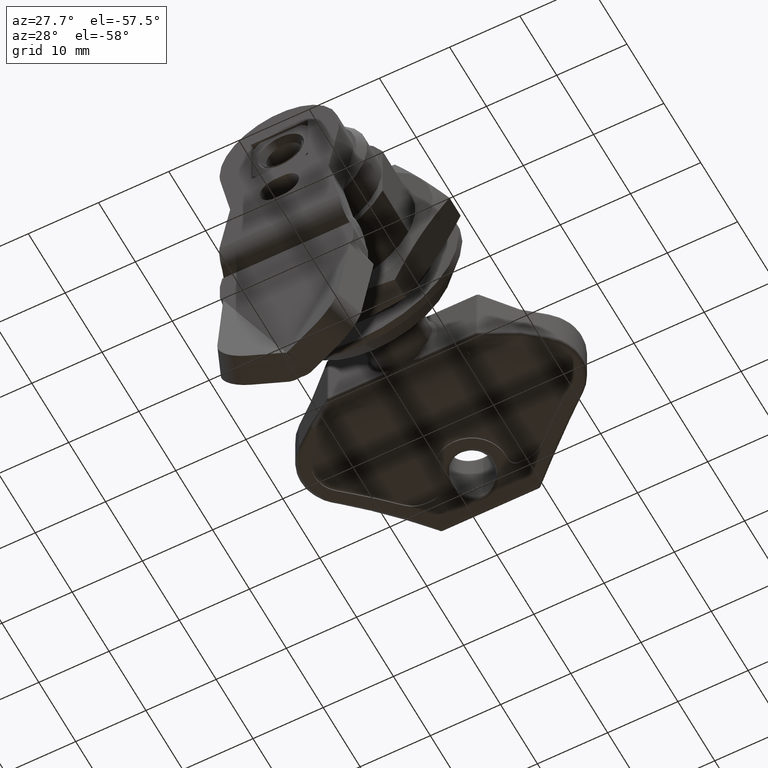
[diagram: clean part render]
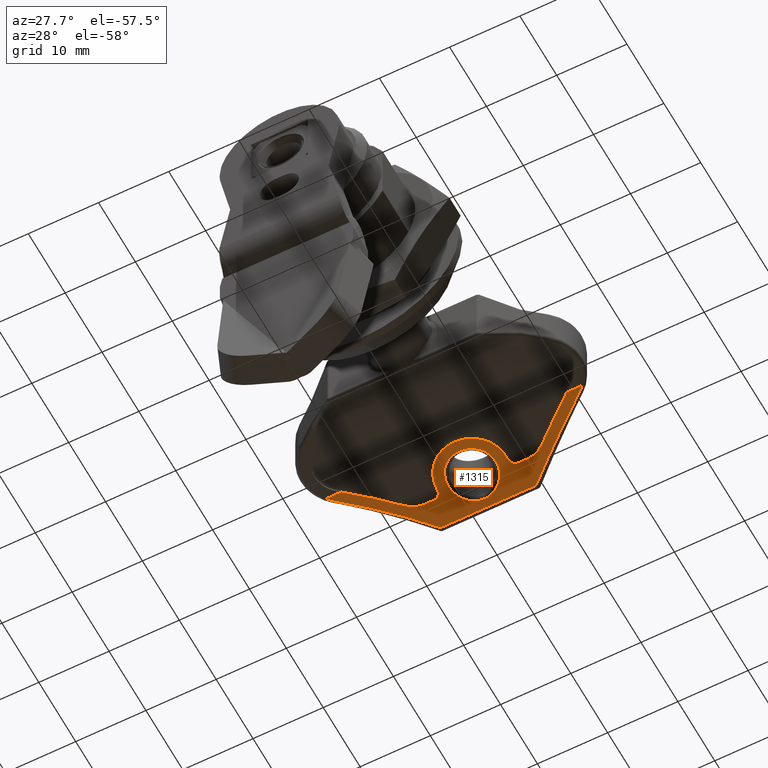
[diagram: same view with one face highlighted and labeled with its STEP entity id]
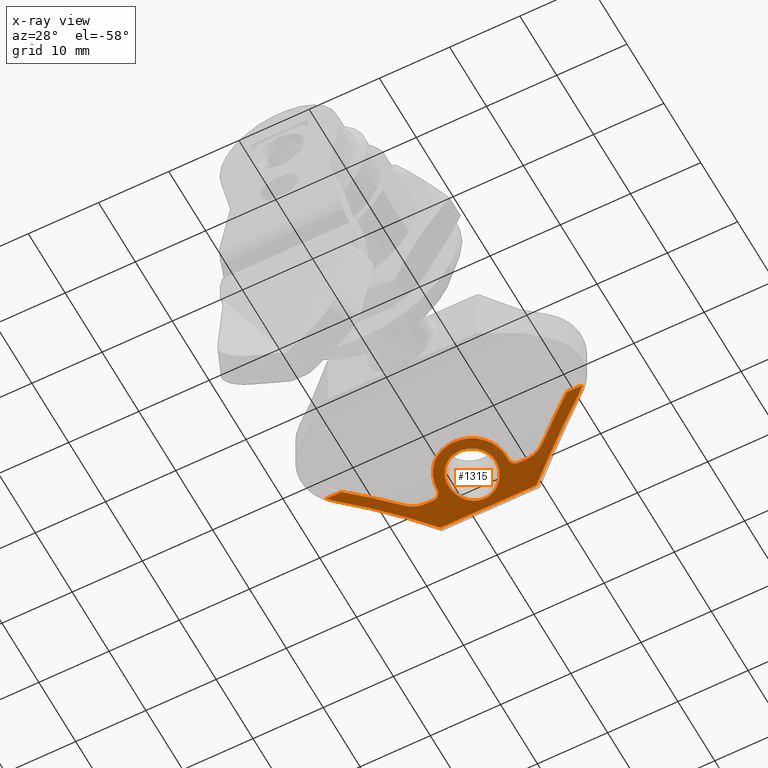
[diagram: x-ray of the same camera — body ghosted, the highlighted face saturated]
A machine part, auxiliary view. The second image highlights one B-rep face of the part: STEP entity #1315.
The next image is the same camera in x-ray: the body ghosted, the highlighted face saturated — about 0% of this face is hidden behind the body in this view.
In plain terms, the highlighted cylindrical surface (partial cylindrical patch) has radius 20.3895 mm, axis along (-1, 0, 0).
Its self-contained STEP definition (entity closure, byte-faithful):
#18 = CARTESIAN_POINT ( 'NONE',  ( 14.88785095321629193, 51.01937870650804285, 5.210504290748258605 ) ) ;
#25 = CARTESIAN_POINT ( 'NONE',  ( 13.54383272834816943, 52.18032233803637610, 4.957320331130537383 ) ) ;
#30 = CARTESIAN_POINT ( 'NONE',  ( 10.79421112067232080, 55.51895492630796269, 3.820107334346352967 ) ) ;
#111 = CARTESIAN_POINT ( 'NONE',  ( 7.555674353660953635, 49.77772899556182296, 5.398894104357743196 ) ) ;
#119 = CARTESIAN_POINT ( 'NONE',  ( 6.819077333304382371, 53.50826473908239933, 4.581859514832879121 ) ) ;
#152 = VERTEX_POINT ( 'NONE', #14259 ) ;
#200 = CARTESIAN_POINT ( 'NONE',  ( 15.01242744097246984, 51.65380340385339508, 5.082368643503118122 ) ) ;
#207 = CARTESIAN_POINT ( 'NONE',  ( 7.791146958207747275, 49.56440647782793718, 5.423956761933238724 ) ) ;
#213 = CARTESIAN_POINT ( 'NONE',  ( 6.705674894175968959, 53.20872758418365578, 4.675169841569734253 ) ) ;
#326 = EDGE_CURVE ( 'NONE', #18755, #3208, #16031, .T. ) ;
#400 = CARTESIAN_POINT ( 'NONE',  ( 23.98606253962771362, 49.02039703702723017, 5.550000000000019362 ) ) ;
#456 = CARTESIAN_POINT ( 'NONE',  ( -3.590225598182513078, 51.11934698418467349, 5.213718082265362597 ) ) ;
#491 = CARTESIAN_POINT ( 'NONE',  ( 4.043832724294067482, 53.30000000000023874, 4.647206766282116597 ) ) ;
#540 = CARTESIAN_POINT ( 'NONE',  ( 19.87350431050496979, 52.39296948010485266, 4.903686010593611755 ) ) ;
#556 = CARTESIAN_POINT ( 'NONE',  ( 25.51381831255090304, 49.64979554227241465, 5.478515171168681697 ) ) ;
#575 = CARTESIAN_POINT ( 'NONE',  ( 0.9655238923792776040, 52.90928467542777724, 4.763920496147288297 ) ) ;
#589 = VERTEX_POINT ( 'NONE', #2054 ) ;
#596 = CARTESIAN_POINT ( 'NONE',  ( -8.198807962825929607, 47.29999999999967741, 5.550000000000129496 ) ) ;
#951 = EDGE_CURVE ( 'NONE', #2812, #15016, #2051, .T. ) ;
#999 = CARTESIAN_POINT ( 'NONE',  ( 15.04383272429413587, 52.30000000000034532, 4.927435300544324548 ) ) ;
#1058 = CARTESIAN_POINT ( 'NONE',  ( 16.86503334508689989, 56.57261321819917299, 3.319531618649753657 ) ) ;
#1081 = CARTESIAN_POINT ( 'NONE',  ( 10.28925303713001682, 48.77210977782772972, 5.496795955480338058 ) ) ;
#1108 = CARTESIAN_POINT ( 'NONE',  ( 5.018104145273388994, 52.55953389391942210, 4.860354968943031650 ) ) ;
#1146 = CARTESIAN_POINT ( 'NONE',  ( 5.043832724294125214, 52.30000000000023874, 4.927435300544324548 ) ) ;
#1149 = EDGE_CURVE ( 'NONE', #589, #10465, #16810, .T. ) ;
#1313 = VERTEX_POINT ( 'NONE', #16374 ) ;
#1315 = ADVANCED_FACE ( 'NONE', ( #3127, #9016 ), #14936, .F. ) ;
#1338 = LINE ( 'NONE', #2986, #11663 ) ;
#1378 = CARTESIAN_POINT ( 'NONE',  ( 9.652581992786052112, 48.77789026817072227, 5.496419262887671131 ) ) ;
#1384 = CARTESIAN_POINT ( 'NONE',  ( 8.374655603643423873, 55.21425960193634097, 3.952124372035101807 ) ) ;
#1394 = CARTESIAN_POINT ( 'NONE',  ( 6.051175379607917293, 49.27246292301420283, 5.456232565954421965 ) ) ;
#1395 = CARTESIAN_POINT ( 'NONE',  ( 12.64825074949725092, 54.47429363554049786, 4.246918594024753801 ) ) ;
#1466 = ORIENTED_EDGE ( 'NONE', *, *, #3072, .F. ) ;
#1470 = CARTESIAN_POINT ( 'NONE',  ( 12.27185521397945145, 47.81168412334348972, 5.543974457935275879 ) ) ;
#1475 = CARTESIAN_POINT ( 'NONE',  ( 10.13861282768238858, 48.76500346409252984, 5.497303665799290862 ) ) ;
#1514 = VERTEX_POINT ( 'NONE', #18561 ) ;
#1566 = B_SPLINE_CURVE_WITH_KNOTS ( 'NONE', 3,
 ( #15798, #8726, #17437, #10093, #2545, #2937, #11751, #13105, #7166, #1394, #18690, #8428, #14756, #17341, #14364, #18875, #15897, #13011, #17545, #4387, #7272, #4190 ),
 .UNSPECIFIED., .F., .F.,
 ( 4, 2, 2, 2, 2, 2, 2, 2, 2, 2, 4 ),
 ( 1.077240930865403988E-16, 0.0009834004425559878925, 0.001475100663833927737, 0.001966800885111867798, 0.002950201327667747054, 0.003933601770223626309, 0.004917002212779505999, 0.005900402655335384820, 0.006392102876613326400, 0.006883803097891267979, 0.007867203540447157209 ),
 .UNSPECIFIED. ) ;
#1568 = CARTESIAN_POINT ( 'NONE',  ( 7.208845486341361131, 50.12147164299538105, 5.356709029973823810 ) ) ;
#1573 = CARTESIAN_POINT ( 'NONE',  ( 6.543859272612793099, 52.36747925288622696, 4.911171063809310233 ) ) ;
#1609 = CARTESIAN_POINT ( 'NONE',  ( 17.79881027697454954, 53.27985272524402660, 4.653442152882666605 ) ) ;
#1611 = CARTESIAN_POINT ( 'NONE',  ( -7.966598191023308573, 47.56298525015782275, 5.548827532856861033 ) ) ;
#1633 = EDGE_CURVE ( 'NONE', #10980, #16648, #1644, .T. ) ;
#1644 = LINE ( 'NONE', #11727, #7373 ) ;
#1656 = CARTESIAN_POINT ( 'NONE',  ( 6.543832715343453010, 52.18032244516601281, 4.957320157025003837 ) ) ;
#1663 = CARTESIAN_POINT ( 'NONE',  ( 6.651466892009020526, 53.02965789036620237, 4.728791810256310235 ) ) ;
#1675 = CARTESIAN_POINT ( 'NONE',  ( 30.04383272429400975, 47.30000000000011795, -14.83951680621002822 ) ) ;
#1685 = DIRECTION ( 'NONE',  ( -1.000000000000000000, 1.627250025346605968E-17, 4.177214130152150694E-15 ) ) ;
#1754 = CARTESIAN_POINT ( 'NONE',  ( 10.46903213903030405, 55.57811296755877351, 3.793983296833238761 ) ) ;
#1755 = CARTESIAN_POINT ( 'NONE',  ( 21.90487944431691147, 50.72710618622311074, 5.333413192778380107 ) ) ;
#1848 = ORIENTED_EDGE ( 'NONE', *, *, #9782, .F. ) ;
#1908 = CARTESIAN_POINT ( 'NONE',  ( -1.404686822636165511, 52.86873548362863318, 4.804859526433972405 ) ) ;
#1919 = CARTESIAN_POINT ( 'NONE',  ( 15.04383272429415008, 52.43043431261481402, 4.894442274631615852 ) ) ;
#1987 = CARTESIAN_POINT ( 'NONE',  ( 6.543832715343453010, 52.18032244516601281, 4.957320157025003837 ) ) ;
#2051 = B_SPLINE_CURVE_WITH_KNOTS ( 'NONE', 3,
 ( #15001, #10456, #6177, #16355, #9185, #1470, #13454, #5899, #13365, #12102, #15097, #14913, #13279, #16531, #18, #200, #11818, #6649 ),
 .UNSPECIFIED., .F., .F.,
 ( 4, 2, 2, 2, 2, 2, 2, 2, 4 ),
 ( 0.007867203540447157209, 0.008849610468263295268, 0.009832017396079435062, 0.01081442432389557312, 0.01179683125171171118, 0.01277923817952785097, 0.01376164510734398903, 0.01474405203516012883, 0.01572645896297626689 ),
 .UNSPECIFIED. ) ;
#2054 = CARTESIAN_POINT ( 'NONE',  ( 0.2141611380838421286, 52.39296948010452581, 4.903686010593805378 ) ) ;
#2099 = CARTESIAN_POINT ( 'NONE',  ( 18.38483465241563408, 55.35610638245619697, 3.940714496842108616 ) ) ;
#2118 = EDGE_CURVE ( 'NONE', #1514, #7368, #13331, .T. ) ;
#2200 =( BOUNDED_CURVE ( )  B_SPLINE_CURVE ( 3, ( #17190, #18437, #6821, #3737, #8369, #2291 ),
 .UNSPECIFIED., .F., .T. ) 
 B_SPLINE_CURVE_WITH_KNOTS ( ( 4, 1, 1, 4 ),
 ( 0.0000000000000000000, 0.3324685133038000062, 0.6658412342494999248, 1.000000000000000000 ),
 .UNSPECIFIED. ) 
 CURVE ( )  GEOMETRIC_REPRESENTATION_ITEM ( )  RATIONAL_B_SPLINE_CURVE ( ( 1.178422062299055106, 1.178422062299055106, 1.178422062299055106, 1.178422062299055106, 1.178422062299055106, 1.178422062299054884 ) ) 
 REPRESENTATION_ITEM ( '' )  );
#2238 = EDGE_CURVE ( 'NONE', #11887, #17584, #3149, .T. ) ;
#2291 = CARTESIAN_POINT ( 'NONE',  ( 27.53144031122565139, 48.03481415293126133, 5.536754779912023139 ) ) ;
#2524 = VECTOR ( 'NONE', #9157, 1000.000000000000000 ) ;
#2531 = CARTESIAN_POINT ( 'NONE',  ( 12.55591446676407585, 49.80153591685380832, 5.395966139384481330 ) ) ;
#2545 = CARTESIAN_POINT ( 'NONE',  ( 5.205553289944472972, 51.02815609132847641, 5.206889105605129409 ) ) ;
#2546 = CARTESIAN_POINT ( 'NONE',  ( 11.69970157928345422, 55.19833104993283257, 3.958489952346768259 ) ) ;
#2629 = CARTESIAN_POINT ( 'NONE',  ( 12.68192576732093180, 49.93397503208184673, 5.379234149889191130 ) ) ;
#2735 = CARTESIAN_POINT ( 'NONE',  ( 10.08882246110063363, 48.76408876122007285, 5.497367555542250983 ) ) ;
#2812 = VERTEX_POINT ( 'NONE', #8936 ) ;
#2825 = CARTESIAN_POINT ( 'NONE',  ( 13.46668383997299756, 51.34288699489025021, 5.149566343214297959 ) ) ;
#2830 = CARTESIAN_POINT ( 'NONE',  ( 6.759276115792971495, 53.36070230727924013, 4.628437718058776795 ) ) ;
#2848 = EDGE_CURVE ( 'NONE', #7368, #7713, #10573, .T. ) ;
#2919 = CARTESIAN_POINT ( 'NONE',  ( 8.716894428786954307, 49.01912463627529348, 5.477399538874528240 ) ) ;
#2924 = CARTESIAN_POINT ( 'NONE',  ( 9.944239870812447535, 55.59552785915636264, 3.786183573923904699 ) ) ;
#2937 = CARTESIAN_POINT ( 'NONE',  ( 5.298596017381288270, 50.71593453157944253, 5.262446508315514748 ) ) ;
#2986 = CARTESIAN_POINT ( 'NONE',  ( 30.04383272429408791, 53.30000000000023874, 4.647206766282064194 ) ) ;
#3025 = CARTESIAN_POINT ( 'NONE',  ( 7.590480773614969756, 54.61709304469014370, 4.191853171315030657 ) ) ;
#3066 =( BOUNDED_CURVE ( )  B_SPLINE_CURVE ( 3, ( #18185, #1755, #400, #4841 ),
 .UNSPECIFIED., .F., .T. ) 
 B_SPLINE_CURVE_WITH_KNOTS ( ( 4, 4 ),
 ( 1.318339431994555611, 1.570796326794898334 ),
 .UNSPECIFIED. ) 
 CURVE ( )  GEOMETRIC_REPRESENTATION_ITEM ( )  RATIONAL_B_SPLINE_CURVE ( ( 1.000000000000000000, 0.9946958415076843085, 0.9946958415076843085, 1.000000000000000000 ) ) 
 REPRESENTATION_ITEM ( '' )  );
#3072 = EDGE_CURVE ( 'NONE', #3208, #18755, #12158, .T. ) ;
#3127 = FACE_BOUND ( 'NONE', #18188, .T. ) ;
#3149 = B_SPLINE_CURVE_WITH_KNOTS ( 'NONE', 3,
 ( #18911, #8960, #1609, #13421, #7405, #11878, #14877, #8566 ),
 .UNSPECIFIED., .F., .F.,
 ( 4, 2, 2, 4 ),
 ( 0.0000000000000000000, 0.0006878987070700087096, 0.001375797414140017419, 0.002751594828280025731 ),
 .UNSPECIFIED. ) ;
#3201 = CARTESIAN_POINT ( 'NONE',  ( 7.570999716663366463, 49.76268335464535397, 5.400731984297648225 ) ) ;
#3208 = VERTEX_POINT ( 'NONE', #10335 ) ;
#3210 = CARTESIAN_POINT ( 'NONE',  ( 7.468513230785140067, 54.49567590691520280, 4.238166560274475358 ) ) ;
#3284 = VERTEX_POINT ( 'NONE', #4805 ) ;
#3363 = CARTESIAN_POINT ( 'NONE',  ( -7.443775370176065387, 48.03481477255188992, 5.536754757570873764 ) ) ;
#3366 = CARTESIAN_POINT ( 'NONE',  ( 16.86503334508689989, 56.57261321819917299, 3.319531618649753657 ) ) ;
#3435 = AXIS2_PLACEMENT_3D ( 'NONE', #1675, #12220, #7557 ) ;
#3464 = CARTESIAN_POINT ( 'NONE',  ( 16.04383272429407725, 53.30000000000023874, 4.647206766282121926 ) ) ;
#3475 = CARTESIAN_POINT ( 'NONE',  ( 1.835294697188312396, 53.22118028770405829, 4.671978591066620723 ) ) ;
#3705 = ORIENTED_EDGE ( 'NONE', *, *, #14665, .F. ) ;
#3737 = CARTESIAN_POINT ( 'NONE',  ( 27.80209456629536646, 47.80845470258604735, 5.544121130733846492 ) ) ;
#3766 = VERTEX_POINT ( 'NONE', #491 ) ;
#4074 = CARTESIAN_POINT ( 'NONE',  ( 12.73991873368400896, 50.00124262263943820, 5.370323681751199452 ) ) ;
#4115 = CARTESIAN_POINT ( 'NONE',  ( -1.817213995727206655, 50.72710618622241441, 5.333413192778547085 ) ) ;
#4175 = CARTESIAN_POINT ( 'NONE',  ( 10.44644626581251323, 48.78519333470178054, 5.495847616816227799 ) ) ;
#4190 = CARTESIAN_POINT ( 'NONE',  ( 10.04383272429407725, 47.30000000000012506, 5.550000000000058442 ) ) ;
#4191 = CARTESIAN_POINT ( 'NONE',  ( 13.14307381688896292, 53.76748230242939286, 4.497146377778145521 ) ) ;
#4277 = CARTESIAN_POINT ( 'NONE',  ( 11.52873077246491640, 49.08639434224778597, 5.471604637725869580 ) ) ;
#4282 = CARTESIAN_POINT ( 'NONE',  ( 11.24139626801578729, 55.39056943483412709, 3.876128878353774621 ) ) ;
#4323 = CARTESIAN_POINT ( 'NONE',  ( -7.443775370176068051, 48.03481477255188992, 5.536754757570873764 ) ) ;
#4352 = ORIENTED_EDGE ( 'NONE', *, *, #17132, .F. ) ;
#4371 = CARTESIAN_POINT ( 'NONE',  ( 8.845824799329765398, 48.97028419945674926, 5.481479391800324841 ) ) ;
#4378 = CARTESIAN_POINT ( 'NONE',  ( 6.815245643494913352, 53.49936660840902647, 4.584702338862329363 ) ) ;
#4387 = CARTESIAN_POINT ( 'NONE',  ( 9.388880680472865947, 47.33208951429621436, 5.550077286190067127 ) ) ;
#4420 = CARTESIAN_POINT ( 'NONE',  ( -7.714429125128516418, 47.80845469595830366, 5.544121130906038530 ) ) ;
#4461 = CARTESIAN_POINT ( 'NONE',  ( 11.32995964290586599, 55.35754245446040755, 3.890364282070219115 ) ) ;
#4500 = ORIENTED_EDGE ( 'NONE', *, *, #10309, .F. ) ;
#4512 = CARTESIAN_POINT ( 'NONE',  ( 4.178419263134170336, 53.30000000000022453, 4.647206766282170776 ) ) ;
#4560 = CARTESIAN_POINT ( 'NONE',  ( 6.623478579148283529, 52.91327651718452074, 4.762452198584067986 ) ) ;
#4609 = CARTESIAN_POINT ( 'NONE',  ( -8.198807962825929607, 47.29999999999967741, 5.550000000000129496 ) ) ;
#4646 = CARTESIAN_POINT ( 'NONE',  ( 7.870755499107531250, 49.50017762775762975, 5.431054515614175848 ) ) ;
#4651 = CARTESIAN_POINT ( 'NONE',  ( 7.225514597093074087, 54.21025891478498693, 4.343566502972924681 ) ) ;
#4805 = CARTESIAN_POINT ( 'NONE',  ( -7.443775370176066275, 48.03481477255188992, 5.536754757570873764 ) ) ;
#4823 = ORIENTED_EDGE ( 'NONE', *, *, #2238, .F. ) ;
#4841 = CARTESIAN_POINT ( 'NONE',  ( 26.08393682147011816, 47.30000000000001137, 5.549999999999971401 ) ) ;
#4904 = CARTESIAN_POINT ( 'NONE',  ( 15.51338126823205954, 53.18690204150588130, 4.682631841509097725 ) ) ;
#5012 = CARTESIAN_POINT ( 'NONE',  ( 0.5690696545111111337, 52.68402024198876887, 4.828607892800237167 ) ) ;
#5354 = ORIENTED_EDGE ( 'NONE', *, *, #15149, .F. ) ;
#5538 = CARTESIAN_POINT ( 'NONE',  ( 12.35644854496211842, 54.74480394451923360, 4.142256635785739327 ) ) ;
#5612 = CARTESIAN_POINT ( 'NONE',  ( 13.11217318122044873, 50.52182718084896607, 5.294790174395569871 ) ) ;
#5712 = CARTESIAN_POINT ( 'NONE',  ( 8.941322912576202597, 48.93733470533980068, 5.484171182092491215 ) ) ;
#5718 = CARTESIAN_POINT ( 'NONE',  ( 11.06570968535699606, 55.44820001564462331, 3.851114654854925767 ) ) ;
#5730 = CARTESIAN_POINT ( 'NONE',  ( 13.43950625729982384, 53.11736803031669041, 4.706908205380485377 ) ) ;
#5764 =( BOUNDED_CURVE ( )  B_SPLINE_CURVE ( 3, ( #4323, #14880, #4420, #1611, #10323, #4609 ),
 .UNSPECIFIED., .F., .T. ) 
 B_SPLINE_CURVE_WITH_KNOTS ( ( 4, 1, 1, 4 ),
 ( 0.0000000000000000000, 0.3341587708522000266, 0.6675314912104999276, 1.000000000000000000 ),
 .UNSPECIFIED. ) 
 CURVE ( )  GEOMETRIC_REPRESENTATION_ITEM ( )  RATIONAL_B_SPLINE_CURVE ( ( 1.178422062304376183, 1.178422062304376183, 1.178422062304376183, 1.178422062304376405, 1.178422062304376183, 1.178422062304375961 ) ) 
 REPRESENTATION_ITEM ( '' )  );
#5818 = CARTESIAN_POINT ( 'NONE',  ( 9.004159594228342556, 48.91767119598567604, 5.485741031675173573 ) ) ;
#5824 = CARTESIAN_POINT ( 'NONE',  ( 6.798883983335715975, 53.46068200185140284, 4.597017221531681130 ) ) ;
#5835 = CARTESIAN_POINT ( 'NONE',  ( 13.54376199039314699, 52.66420331393896248, 4.838007429333774922 ) ) ;
#5899 = CARTESIAN_POINT ( 'NONE',  ( 13.10738341740000124, 48.33492845170583507, 5.524539359552759876 ) ) ;
#5908 = CARTESIAN_POINT ( 'NONE',  ( 12.54266162200039680, 49.78829386619067776, 5.397597820535749769 ) ) ;
#5917 = ORIENTED_EDGE ( 'NONE', *, *, #951, .F. ) ;
#6000 = CARTESIAN_POINT ( 'NONE',  ( 6.953069048300281274, 50.51851164582981824, 5.298723064767059121 ) ) ;
#6006 = CARTESIAN_POINT ( 'NONE',  ( 9.790927060223514999, 55.58800628110997621, 3.789536761685574184 ) ) ;
#6095 = CARTESIAN_POINT ( 'NONE',  ( 7.613995196059445192, 49.72148247996804571, 5.405705164465628876 ) ) ;
#6101 = CARTESIAN_POINT ( 'NONE',  ( 6.913773538260807427, 53.72619624256934401, 4.512107608008487425 ) ) ;
#6177 = CARTESIAN_POINT ( 'NONE',  ( 10.70535201959968319, 47.33310317588012595, 5.550075235655641315 ) ) ;
#6238 = CARTESIAN_POINT ( 'NONE',  ( -5.590219700548888504, 49.51847548890162898, 5.448068600854577781 ) ) ;
#6443 = CARTESIAN_POINT ( 'NONE',  ( 15.04383272429413587, 52.30000000000034532, 4.927435300544324548 ) ) ;
#6449 = VERTEX_POINT ( 'NONE', #12115 ) ;
#6472 = ORIENTED_EDGE ( 'NONE', *, *, #18550, .F. ) ;
#6522 = ORIENTED_EDGE ( 'NONE', *, *, #12281, .F. ) ;
#6649 = CARTESIAN_POINT ( 'NONE',  ( 15.04383272429413587, 52.30000000000034532, 4.927435300544324548 ) ) ;
#6821 = CARTESIAN_POINT ( 'NONE',  ( 28.05426364239740522, 47.56298524721028542, 5.548827532879342606 ) ) ;
#6855 = EDGE_CURVE ( 'NONE', #16648, #589, #17186, .T. ) ;
#6984 = CARTESIAN_POINT ( 'NONE',  ( 12.39278049077690547, 54.71329206959178748, 4.154598115578198581 ) ) ;
#7151 = CARTESIAN_POINT ( 'NONE',  ( 9.309241239749132646, 48.83818144962052799, 5.491905919658343294 ) ) ;
#7166 = CARTESIAN_POINT ( 'NONE',  ( 5.690318868805033681, 49.81923186600091213, 5.395638823675917628 ) ) ;
#7168 = CARTESIAN_POINT ( 'NONE',  ( 12.42891502148237670, 54.68059574335434547, 4.167306281846800964 ) ) ;
#7257 = CARTESIAN_POINT ( 'NONE',  ( 11.43905061843605608, 49.04725239974796125, 5.474998025593247775 ) ) ;
#7263 = CARTESIAN_POINT ( 'NONE',  ( 11.14698239456433804, 55.42328036052790452, 3.861969466792229078 ) ) ;
#7272 = CARTESIAN_POINT ( 'NONE',  ( 9.715178776904457081, 47.30000000000013216, 5.550000000000059330 ) ) ;
#7274 = CARTESIAN_POINT ( 'NONE',  ( 12.99849025072501973, 54.01397525128225396, 4.413145666577880100 ) ) ;
#7362 = CARTESIAN_POINT ( 'NONE',  ( 7.570622466596609534, 54.59797647081120431, 4.199191263638232030 ) ) ;
#7368 = VERTEX_POINT ( 'NONE', #1058 ) ;
#7373 = VECTOR ( 'NONE', #16161, 1000.000000000000000 ) ;
#7405 = CARTESIAN_POINT ( 'NONE',  ( 18.47329010015353745, 53.14216621723853251, 4.695275634020849687 ) ) ;
#7539 = CARTESIAN_POINT ( 'NONE',  ( 8.148202314530227142, 49.29996447327346942, 5.452121616372775037 ) ) ;
#7557 = DIRECTION ( 'NONE',  ( 0.0000000000000000000, 1.000000000000000000, 0.0000000000000000000 ) ) ;
#7636 = CARTESIAN_POINT ( 'NONE',  ( 10.90296635708774176, 55.49393738235551155, 3.831128819239768557 ) ) ;
#7713 = VERTEX_POINT ( 'NONE', #10026 ) ;
#7788 = CARTESIAN_POINT ( 'NONE',  ( 3.222628026681019442, 56.57261453062390899, 3.319530948499750167 ) ) ;
#7800 = EDGE_CURVE ( 'NONE', #6449, #1514, #2200, .T. ) ;
#7818 = CARTESIAN_POINT ( 'NONE',  ( 0.2141611380838421286, 52.39296948010452581, 4.903686010593805378 ) ) ;
#8369 = CARTESIAN_POINT ( 'NONE',  ( 27.62332475718179836, 47.96126625739280769, 5.539407074893476945 ) ) ;
#8428 = CARTESIAN_POINT ( 'NONE',  ( 6.723456985898932814, 48.54732582900978599, 5.513150482138796882 ) ) ;
#8435 = CARTESIAN_POINT ( 'NONE',  ( 4.920643416949992854, 52.79776063833372746, 4.795204294491854924 ) ) ;
#8566 = CARTESIAN_POINT ( 'NONE',  ( 19.87350431050496979, 52.39296948010485266, 4.903686010593611755 ) ) ;
#8614 = CARTESIAN_POINT ( 'NONE',  ( 12.44026178638402058, 49.68684015127698927, 5.410046769806422517 ) ) ;
#8632 = CARTESIAN_POINT ( 'NONE',  ( 12.80050222923432024, 54.29698821524276298, 4.312884516238709054 ) ) ;
#8642 = DIRECTION ( 'NONE',  ( 1.000000000000000000, -1.627250025346605968E-17, -4.177214130152150694E-15 ) ) ;
#8711 = CARTESIAN_POINT ( 'NONE',  ( 12.61078241794148092, 49.85770969845633260, 5.388960842362513048 ) ) ;
#8726 = CARTESIAN_POINT ( 'NONE',  ( 5.043832724294112779, 51.97776551496175301, 5.008943689722982207 ) ) ;
#8729 = CARTESIAN_POINT ( 'NONE',  ( 11.99020486378448602, 55.02191852994165799, 4.031318538707433063 ) ) ;
#8813 = CARTESIAN_POINT ( 'NONE',  ( 8.700656270152157035, 49.02566442333239394, 5.476844665409509538 ) ) ;
#8917 = CARTESIAN_POINT ( 'NONE',  ( 9.216440391554545641, 55.50636223547596160, 3.825677968740223367 ) ) ;
#8936 = CARTESIAN_POINT ( 'NONE',  ( 10.04383272429407725, 47.30000000000012506, 5.550000000000058442 ) ) ;
#8960 = CARTESIAN_POINT ( 'NONE',  ( 17.56975770126592096, 53.30000000000033111, 4.647206766282130808 ) ) ;
#9008 = CARTESIAN_POINT ( 'NONE',  ( 6.543832715343453010, 52.18032244516601281, 4.957320157025003837 ) ) ;
#9016 = FACE_OUTER_BOUND ( 'NONE', #9205, .T. ) ;
#9104 = CARTESIAN_POINT ( 'NONE',  ( 9.003942754382157077, 55.44958574171158716, 3.850698340458255764 ) ) ;
#9157 = DIRECTION ( 'NONE',  ( 1.000000000000000000, -1.627250025346605968E-17, -4.177214130152150694E-15 ) ) ;
#9171 = CARTESIAN_POINT ( 'NONE',  ( 15.23925295195420304, 52.90798427986118213, 4.763857517547473108 ) ) ;
#9185 = CARTESIAN_POINT ( 'NONE',  ( 11.66217266998382485, 47.55763356082900373, 5.548768107090165991 ) ) ;
#9205 = EDGE_LOOP ( 'NONE', ( #6472, #3705, #18045, #17426, #10684, #16458, #4352, #4823, #6522, #9716, #5917, #5354, #4500, #1848, #16387, #17391, #17177 ) ) ;
#9263 = CARTESIAN_POINT ( 'NONE',  ( 20.04127205804828549, 54.03015810269990737, 4.463837836694059646 ) ) ;
#9437 = LINE ( 'NONE', #14973, #2524 ) ;
#9716 = ORIENTED_EDGE ( 'NONE', *, *, #11944, .F. ) ;
#9782 = EDGE_CURVE ( 'NONE', #10465, #3766, #1338, .T. ) ;
#9889 = CARTESIAN_POINT ( 'NONE',  ( 12.28359839160338929, 54.80627718943675575, 4.118069049757762556 ) ) ;
#9967 = CARTESIAN_POINT ( 'NONE',  ( 13.21736732813077531, 50.72412863514517056, 5.261516865683592670 ) ) ;
#10026 = CARTESIAN_POINT ( 'NONE',  ( 3.222628026681019442, 56.57261453062390189, 3.319530948499750167 ) ) ;
#10093 = CARTESIAN_POINT ( 'NONE',  ( 5.167048800531169661, 51.18517091384758544, 5.177070820694975595 ) ) ;
#10094 = CARTESIAN_POINT ( 'NONE',  ( 13.25617597603866926, 53.53666955667397787, 4.572770512327983816 ) ) ;
#10126 = CARTESIAN_POINT ( 'NONE',  ( 4.847767602861805969, 52.90875766365887500, 4.763634608741697640 ) ) ;
#10179 = CARTESIAN_POINT ( 'NONE',  ( 11.92226060455985603, 49.29480311768251966, 5.452301710558246306 ) ) ;
#10196 = CARTESIAN_POINT ( 'NONE',  ( 13.54383272834816943, 52.18032233803637610, 4.957320331130537383 ) ) ;
#10268 = CARTESIAN_POINT ( 'NONE',  ( 12.02747542861898644, 49.36367860355811388, 5.445406068844594216 ) ) ;
#10273 = CARTESIAN_POINT ( 'NONE',  ( 7.529451940774255725, 54.55736163739931754, 4.214709507052197601 ) ) ;
#10286 = CARTESIAN_POINT ( 'NONE',  ( 12.23478446794827157, 54.84519128275177735, 4.102605206191637599 ) ) ;
#10309 = EDGE_CURVE ( 'NONE', #3766, #10960, #10725, .T. ) ;
#10323 = CARTESIAN_POINT ( 'NONE',  ( -8.123444387069129746, 47.38916774524157205, 5.549999991353178785 ) ) ;
#10335 = CARTESIAN_POINT ( 'NONE',  ( 13.54383272834816943, 52.18032233803637610, 4.957320331130537383 ) ) ;
#10456 = CARTESIAN_POINT ( 'NONE',  ( 10.37215463752256106, 47.30000000000011795, 5.550000000000054001 ) ) ;
#10465 = VERTEX_POINT ( 'NONE', #11626 ) ;
#10466 = CARTESIAN_POINT ( 'NONE',  ( 6.559654858080449458, 52.57608172133243585, 4.856924900374328224 ) ) ;
#10484 = CARTESIAN_POINT ( 'NONE',  ( 30.04383272429397422, 56.57261321819906641, 3.319531618649740334 ) ) ;
#10551 = CARTESIAN_POINT ( 'NONE',  ( 6.543883400151488949, 51.77099553812658428, 5.058210020455288891 ) ) ;
#10556 = CARTESIAN_POINT ( 'NONE',  ( 7.296594358625895005, 54.30111083483918577, 4.310556834717861108 ) ) ;
#10573 = LINE ( 'NONE', #10484, #12551 ) ;
#10684 = ORIENTED_EDGE ( 'NONE', *, *, #7800, .F. ) ;
#10725 = B_SPLINE_CURVE_WITH_KNOTS ( 'NONE', 3,
 ( #13325, #4512, #18909, #11581, #17473, #10126, #8435, #1108, #16873, #15428 ),
 .UNSPECIFIED., .F., .F.,
 ( 4, 2, 2, 2, 4 ),
 ( 2.602085213965210642E-18, 0.0003979044338633021412, 0.0007958088677266016804, 0.001193713301589901165, 0.001591617735453200759 ),
 .UNSPECIFIED. ) ;
#10810 = CARTESIAN_POINT ( 'NONE',  ( 23.60543010619433701, 51.17727104709904751, 5.232400632057179202 ) ) ;
#10816 = CARTESIAN_POINT ( 'NONE',  ( 15.77446337857946190, 53.30000000000026006, 4.647206766282113044 ) ) ;
#10919 = CARTESIAN_POINT ( 'NONE',  ( 2.285193626631870423, 53.30000000000011084, 4.647206766282184098 ) ) ;
#10960 = VERTEX_POINT ( 'NONE', #1146 ) ;
#10980 = VERTEX_POINT ( 'NONE', #596 ) ;
#11014 = CARTESIAN_POINT ( 'NONE',  ( 0.2141611380838421286, 52.39296948010452581, 4.903686010593805378 ) ) ;
#11529 = CARTESIAN_POINT ( 'NONE',  ( 12.85185908961839019, 50.13803745841627801, 5.351725597584145788 ) ) ;
#11571 = CARTESIAN_POINT ( 'NONE',  ( -3.898397091037658857, 49.02039703702681805, 5.550000000000125944 ) ) ;
#11581 = CARTESIAN_POINT ( 'NONE',  ( 4.554443750385491541, 53.16993790564941236, 4.686852909414165325 ) ) ;
#11626 = CARTESIAN_POINT ( 'NONE',  ( 2.750603488136022623, 53.30000000000012506, 4.647206766282177881 ) ) ;
#11644 = CARTESIAN_POINT ( 'NONE',  ( 9.842269492950428855, 55.59124805749794973, 3.788092401653283314 ) ) ;
#11663 = VECTOR ( 'NONE', #16134, 1000.000000000000000 ) ;
#11727 = CARTESIAN_POINT ( 'NONE',  ( 30.04383272429398133, 47.30000000000017479, 5.549999999999955413 ) ) ;
#11736 = CARTESIAN_POINT ( 'NONE',  ( 12.92108958314284450, 50.23224432641215031, 5.338290179768849342 ) ) ;
#11751 = CARTESIAN_POINT ( 'NONE',  ( 5.353369350047750608, 50.56040663032652560, 5.288213105932156211 ) ) ;
#11818 = CARTESIAN_POINT ( 'NONE',  ( 15.04383272429415008, 51.97803216526410353, 5.008876241210646896 ) ) ;
#11824 = CARTESIAN_POINT ( 'NONE',  ( 11.74340255392434784, 49.19324340868944034, 5.461944646275319393 ) ) ;
#11831 = CARTESIAN_POINT ( 'NONE',  ( 11.30861386364542298, 55.36570042949044534, 3.886853186399407356 ) ) ;
#11878 = CARTESIAN_POINT ( 'NONE',  ( 19.12477365289093711, 52.90792314359225657, 4.764311861026642170 ) ) ;
#11887 = VERTEX_POINT ( 'NONE', #16513 ) ;
#11920 = CARTESIAN_POINT ( 'NONE',  ( 6.620875963181916291, 51.34331449048872287, 5.149482668931405271 ) ) ;
#11944 = EDGE_CURVE ( 'NONE', #15016, #152, #13017, .T. ) ;
#12017 = CARTESIAN_POINT ( 'NONE',  ( 7.552354329624910712, 49.78100584698603370, 5.398492777071329130 ) ) ;
#12089 = CARTESIAN_POINT ( 'NONE',  ( 15.06898099287560733, 52.55783068000958025, 4.860815717181742990 ) ) ;
#12102 = CARTESIAN_POINT ( 'NONE',  ( 13.82773968098475592, 49.01497802714905561, 5.479112147847696512 ) ) ;
#12115 = CARTESIAN_POINT ( 'NONE',  ( 28.28647341141452287, 47.30000000000067217, 5.549999999999962519 ) ) ;
#12158 = B_SPLINE_CURVE_WITH_KNOTS ( 'NONE', 3,
 ( #25, #17327, #2825, #9967, #5612, #11736, #11529, #4074, #2629, #8711, #19056, #2531, #17422, #5908, #17529, #8614, #17622, #10268, #10179, #11824, #14448, #14350, #4277, #18956, #7257, #13089, #12995, #14740, #13283, #15782, #4175, #1081, #15984, #1475, #2735, #14542, #1378, #7151, #13188, #5818, #5712, #4371, #12902, #16172, #2919, #8813, #17707, #16361, #7539, #4646, #207, #17891, #16446, #6095, #14833, #3201, #17801, #111, #14919, #12017, #1568, #6000, #11920, #10551, #1656 ),
 .UNSPECIFIED., .F., .F.,
 ( 4, 2, 2, 2, 1, 1, 1, 1, 2, 2, 2, 2, 2, 1, 1, 2, 2, 2, 2, 2, 2, 2, 2, 2, 1, 1, 2, 2, 2, 2, 2, 1, 1, 1, 2, 2, 2, 4 ),
 ( 0.0000000000000000000, 0.1250000000000036082, 0.1875000000000054956, 0.2187500000000065781, 0.2343750000000072720, 0.2421875000000071054, 0.2460937500000070222, 0.2480468750000077716, 0.2490234375000079936, 0.2500000000000082157, 0.3125000000000284772, 0.3437500000000385803, 0.3593750000000430767, 0.3671875000000448530, 0.3710937500000458522, 0.3730468750000464628, 0.3750000000000470735, 0.4375000000000776046, 0.4687500000000930367, 0.4843750000001007527, 0.5000000000001084688, 0.5625000000001387779, 0.5937500000001542100, 0.6093750000001616485, 0.6171875000001653122, 0.6210937500001674216, 0.6230468750001685319, 0.6250000000001696421, 0.6875000000002149392, 0.7187500000002370326, 0.7343750000002480238, 0.7421875000002536860, 0.7460937500002564615, 0.7480468750002577938, 0.7490234375002574607, 0.7500000000002570166, 0.8750000000001285638, 1.000000000000000000 ),
 .UNSPECIFIED. ) ;
#12220 = DIRECTION ( 'NONE',  ( -1.000000000000000000, 1.627250025346605968E-17, 4.177214130152150694E-15 ) ) ;
#12281 = EDGE_CURVE ( 'NONE', #152, #11887, #17261, .T. ) ;
#12292 = CARTESIAN_POINT ( 'NONE',  ( 2.750603488136022623, 53.30000000000012506, 4.647206766282177881 ) ) ;
#12370 = CARTESIAN_POINT ( 'NONE',  ( 15.16697528696252029, 52.79792930462085820, 4.795163184898781239 ) ) ;
#12551 = VECTOR ( 'NONE', #1685, 1000.000000000000000 ) ;
#12751 = EDGE_CURVE ( 'NONE', #1313, #6449, #9437, .T. ) ;
#12902 = CARTESIAN_POINT ( 'NONE',  ( 8.797765722469481631, 48.98762254557090046, 5.480049132851101845 ) ) ;
#12995 = CARTESIAN_POINT ( 'NONE',  ( 11.41027055684237723, 49.03519429658948781, 5.476031603168530104 ) ) ;
#13011 = CARTESIAN_POINT ( 'NONE',  ( 8.741172987703841102, 47.46985612351365091, 5.549349428537441398 ) ) ;
#13017 = B_SPLINE_CURVE_WITH_KNOTS ( 'NONE', 3,
 ( #6443, #1919, #12089, #12370, #9171, #4904, #10816, #3464 ),
 .UNSPECIFIED., .F., .F.,
 ( 4, 2, 2, 4 ),
 ( 1.440969542111313559E-17, 0.0003979122712295054295, 0.0007958245424589964392, 0.001591649084917963822 ),
 .UNSPECIFIED. ) ;
#13089 = CARTESIAN_POINT ( 'NONE',  ( 11.42075568328481694, 49.03955019285180583, 5.475659093013891088 ) ) ;
#13105 = CARTESIAN_POINT ( 'NONE',  ( 5.538495017198287407, 50.10718008654266242, 5.358146534741653255 ) ) ;
#13106 = CARTESIAN_POINT ( 'NONE',  ( 12.46620542770738638, 54.64618170166597366, 4.180633675862433840 ) ) ;
#13188 = CARTESIAN_POINT ( 'NONE',  ( 9.189643694193890155, 48.86495456793464598, 5.489886719887111965 ) ) ;
#13206 = CARTESIAN_POINT ( 'NONE',  ( 12.08817211470620556, 54.95598816085713167, 4.058221622985728416 ) ) ;
#13279 = CARTESIAN_POINT ( 'NONE',  ( 14.54920344569575441, 50.10738546797735182, 5.358104591237514924 ) ) ;
#13283 = CARTESIAN_POINT ( 'NONE',  ( 10.89968489296395937, 48.85995557428228153, 5.490273908134290615 ) ) ;
#13287 = CARTESIAN_POINT ( 'NONE',  ( 9.636018536043597038, 55.57483368847258731, 3.795394088300071633 ) ) ;
#13325 = CARTESIAN_POINT ( 'NONE',  ( 4.043832724294067482, 53.30000000000023874, 4.647206766282116597 ) ) ;
#13331 = B_SPLINE_CURVE_WITH_KNOTS ( 'NONE', 3,
 ( #15262, #556, #10810, #9263, #2099, #3366 ),
 .UNSPECIFIED., .F., .F.,
 ( 4, 2, 4 ),
 ( 0.0000000000000000000, 0.5000000000000000000, 1.000000000000000000 ),
 .UNSPECIFIED. ) ;
#13365 = CARTESIAN_POINT ( 'NONE',  ( 13.36222170956868993, 48.54532081777766450, 5.513296470265694360 ) ) ;
#13379 = CARTESIAN_POINT ( 'NONE',  ( 6.808656335557937922, 53.48388458363184839, 4.589637047841484296 ) ) ;
#13421 = CARTESIAN_POINT ( 'NONE',  ( 18.24999025500036964, 53.20115382309599994, 4.677411004094535585 ) ) ;
#13454 = CARTESIAN_POINT ( 'NONE',  ( 12.56432226372464100, 47.96938021595724422, 5.539830350874684228 ) ) ;
#13563 = CARTESIAN_POINT ( 'NONE',  ( 7.966601372159038519, 54.96947120132228548, 4.055931703879734229 ) ) ;
#13714 = CARTESIAN_POINT ( 'NONE',  ( 0.8961431326185453905, 54.71040740873090868, 4.191125967405844754 ) ) ;
#13753 = ORIENTED_EDGE ( 'NONE', *, *, #326, .F. ) ;
#14259 = CARTESIAN_POINT ( 'NONE',  ( 16.04383272429407725, 53.30000000000023874, 4.647206766282121926 ) ) ;
#14350 = CARTESIAN_POINT ( 'NONE',  ( 11.58015578602825535, 49.11061955902577125, 5.469456191816014723 ) ) ;
#14364 = CARTESIAN_POINT ( 'NONE',  ( 7.817194326918221137, 47.81117174127227543, 5.543981968134015226 ) ) ;
#14448 = CARTESIAN_POINT ( 'NONE',  ( 11.68028321854221652, 49.15969581578692527, 5.465042727865056627 ) ) ;
#14542 = CARTESIAN_POINT ( 'NONE',  ( 9.860546749656085908, 48.76413056398725843, 5.497362045128278751 ) ) ;
#14654 = CARTESIAN_POINT ( 'NONE',  ( 13.05941814210626362, 53.91679502225539977, 4.446781801984220905 ) ) ;
#14661 = CARTESIAN_POINT ( 'NONE',  ( 30.04383272429408791, 53.30000000000023874, 4.647206766282064194 ) ) ;
#14665 = EDGE_CURVE ( 'NONE', #7713, #3284, #18130, .T. ) ;
#14740 = CARTESIAN_POINT ( 'NONE',  ( 11.14680143785867017, 48.92690278518597324, 5.485266917118249985 ) ) ;
#14756 = CARTESIAN_POINT ( 'NONE',  ( 6.975984586435587609, 48.33790652190124604, 5.524409355139484390 ) ) ;
#14833 = CARTESIAN_POINT ( 'NONE',  ( 7.593388155092994474, 49.74098884471771953, 5.403365043389142031 ) ) ;
#14839 = CARTESIAN_POINT ( 'NONE',  ( 7.026817683051548968, 53.92776822554147031, 4.443768232954945496 ) ) ;
#14877 = CARTESIAN_POINT ( 'NONE',  ( 19.51861851131585368, 52.68399962970220685, 4.828611683320437997 ) ) ;
#14880 = CARTESIAN_POINT ( 'NONE',  ( -7.535659301980831337, 47.96126626284951300, 5.539407074712772605 ) ) ;
#14913 = CARTESIAN_POINT ( 'NONE',  ( 14.39391291472231416, 49.81336803790548373, 5.396351947089392809 ) ) ;
#14919 = CARTESIAN_POINT ( 'NONE',  ( 7.552668619270901829, 49.78069705952878365, 5.398530509837513591 ) ) ;
#14936 = CYLINDRICAL_SURFACE ( 'NONE', #3435, 20.38951680620999696 ) ;
#14973 = CARTESIAN_POINT ( 'NONE',  ( 30.04383272429398133, 47.30000000000017479, 5.549999999999955413 ) ) ;
#14977 = CARTESIAN_POINT ( 'NONE',  ( 2.444498620180448611, 55.94977009147894620, 3.637573117534576017 ) ) ;
#14985 = VECTOR ( 'NONE', #8642, 1000.000000000000000 ) ;
#15001 = CARTESIAN_POINT ( 'NONE',  ( 10.04383272429407725, 47.30000000000012506, 5.550000000000058442 ) ) ;
#15016 = VERTEX_POINT ( 'NONE', #999 ) ;
#15019 = CARTESIAN_POINT ( 'NONE',  ( 9.992880684991531481, 55.59656659004715351, 3.785718808323745854 ) ) ;
#15097 = CARTESIAN_POINT ( 'NONE',  ( 14.03371911059103816, 49.26893701772657153, 5.456558925688258732 ) ) ;
#15149 = EDGE_CURVE ( 'NONE', #10960, #2812, #1566, .T. ) ;
#15258 = CARTESIAN_POINT ( 'NONE',  ( -6.854558530010416817, 48.50645049673314446, 5.519746522021439006 ) ) ;
#15262 = CARTESIAN_POINT ( 'NONE',  ( 27.53144031122565139, 48.03481415293126133, 5.536754779912023139 ) ) ;
#15428 = CARTESIAN_POINT ( 'NONE',  ( 5.043832724294125214, 52.30000000000023874, 4.927435300544324548 ) ) ;
#15782 = CARTESIAN_POINT ( 'NONE',  ( 10.55640905332531609, 48.79896979797284473, 5.494840012429127896 ) ) ;
#15798 = CARTESIAN_POINT ( 'NONE',  ( 5.043832724294125214, 52.30000000000023874, 4.927435300544324548 ) ) ;
#15897 = CARTESIAN_POINT ( 'NONE',  ( 8.425637430206215583, 47.56622177884474922, 5.548318866209674738 ) ) ;
#15984 = CARTESIAN_POINT ( 'NONE',  ( 10.23814190274360136, 48.76901409188382530, 5.497017846369708138 ) ) ;
#16031 = B_SPLINE_CURVE_WITH_KNOTS ( 'NONE', 3,
 ( #9008, #1573, #10466, #4560, #1663, #213, #16452, #2830, #17627, #5824, #13379, #4378, #119, #6101, #14839, #4651, #10556, #16276, #3210, #10273, #7362, #3025, #13563, #1384, #9104, #8917, #16181, #13287, #6006, #11644, #2924, #15019, #16366, #1754, #30, #7636, #5718, #7263, #4282, #17536, #11831, #17713, #4461, #17252, #2546, #8729, #13206, #10286, #9889, #5538, #6984, #7168, #17342, #13106, #1395, #8632, #7274, #14654, #4191, #19072, #18789, #18692, #10094, #5730, #5835, #10196 ),
 .UNSPECIFIED., .F., .F.,
 ( 4, 2, 2, 2, 1, 1, 2, 2, 2, 2, 1, 2, 2, 2, 2, 2, 2, 2, 2, 2, 1, 1, 1, 2, 2, 2, 2, 2, 1, 2, 2, 2, 2, 1, 2, 2, 4 ),
 ( 0.0000000000000000000, 0.06249999999997291056, 0.09374999999995853317, 0.1093749999999520800, 0.1171874999999495404, 0.1210937499999483052, 0.1230468749999476530, 0.1249999999999469869, 0.1874999999999494293, 0.2187499999999506506, 0.2343749999999505673, 0.2421874999999510392, 0.2499999999999515388, 0.3749999999999616418, 0.4374999999999665823, 0.4687499999999692468, 0.4843749999999707456, 0.4999999999999722444, 0.5624999999999766853, 0.5937499999999789058, 0.6093749999999804601, 0.6171874999999814593, 0.6210937499999822364, 0.6230468749999824585, 0.6249999999999825695, 0.6874999999999797939, 0.7187499999999783507, 0.7343749999999773515, 0.7421874999999770184, 0.7460937499999775735, 0.7499999999999781286, 0.8124999999999784617, 0.8437499999999794609, 0.8593749999999807931, 0.8671874999999813483, 0.8749999999999820144, 1.000000000000000000 ),
 .UNSPECIFIED. ) ;
#16134 = DIRECTION ( 'NONE',  ( 1.000000000000000000, -1.627250025346605968E-17, -4.177214130152150694E-15 ) ) ;
#16161 = DIRECTION ( 'NONE',  ( 1.000000000000000000, -1.627250025346605968E-17, -4.177214130152150694E-15 ) ) ;
#16172 = CARTESIAN_POINT ( 'NONE',  ( 8.741221642883779452, 49.00943162342326787, 5.478219602328115556 ) ) ;
#16181 = CARTESIAN_POINT ( 'NONE',  ( 9.531563295772922828, 55.56145691028039124, 3.801331247939436775 ) ) ;
#16276 = CARTESIAN_POINT ( 'NONE',  ( 7.410065076190019084, 54.43175892703870744, 4.262117514027023546 ) ) ;
#16355 = CARTESIAN_POINT ( 'NONE',  ( 11.34880542658474489, 47.46215770350148233, 5.549457281103935102 ) ) ;
#16361 = CARTESIAN_POINT ( 'NONE',  ( 8.385296095331719712, 49.15536231096950104, 5.465778576825600865 ) ) ;
#16366 = CARTESIAN_POINT ( 'NONE',  ( 10.25388654890706164, 55.59647361846839431, 3.785757646691233269 ) ) ;
#16374 = CARTESIAN_POINT ( 'NONE',  ( 26.08393682147011816, 47.30000000000001137, 5.549999999999971401 ) ) ;
#16387 = ORIENTED_EDGE ( 'NONE', *, *, #1149, .F. ) ;
#16446 = CARTESIAN_POINT ( 'NONE',  ( 7.657167325470123131, 49.68133494891571900, 5.410479935225590786 ) ) ;
#16452 = CARTESIAN_POINT ( 'NONE',  ( 6.725782566687968256, 53.26916242739066121, 4.656775733855533339 ) ) ;
#16458 = ORIENTED_EDGE ( 'NONE', *, *, #12751, .F. ) ;
#16513 = CARTESIAN_POINT ( 'NONE',  ( 17.33706196045212167, 53.30000000000034532, 4.647206766282130808 ) ) ;
#16531 = CARTESIAN_POINT ( 'NONE',  ( 14.79542493649692858, 50.70993859482291555, 5.265150364871876043 ) ) ;
#16648 = VERTEX_POINT ( 'NONE', #18291 ) ;
#16810 = B_SPLINE_CURVE_WITH_KNOTS ( 'NONE', 3,
 ( #7818, #5012, #575, #3475, #10919, #12292 ),
 .UNSPECIFIED., .F., .F.,
 ( 4, 2, 4 ),
 ( 8.197235673886475910E-10, 0.001376161414795859213, 0.002752322009868150756 ),
 .UNSPECIFIED. ) ;
#16873 = CARTESIAN_POINT ( 'NONE',  ( 5.043832724294111003, 52.43034814585744385, 4.894464070292654512 ) ) ;
#17132 = EDGE_CURVE ( 'NONE', #17584, #1313, #3066, .T. ) ;
#17177 = ORIENTED_EDGE ( 'NONE', *, *, #1633, .F. ) ;
#17186 =( BOUNDED_CURVE ( )  B_SPLINE_CURVE ( 3, ( #17464, #11571, #4115, #11014 ),
 .UNSPECIFIED., .F., .F. ) 
 B_SPLINE_CURVE_WITH_KNOTS ( ( 4, 4 ),
 ( 1.570796326794891673, 1.823253221595191986 ),
 .UNSPECIFIED. ) 
 CURVE ( )  GEOMETRIC_REPRESENTATION_ITEM ( )  RATIONAL_B_SPLINE_CURVE ( ( 1.000000000000000000, 0.9946958415076860849, 0.9946958415076860849, 1.000000000000000000 ) ) 
 REPRESENTATION_ITEM ( '' )  );
#17190 = CARTESIAN_POINT ( 'NONE',  ( 28.28647341141451932, 47.30000000000067217, 5.549999999999962519 ) ) ;
#17252 = CARTESIAN_POINT ( 'NONE',  ( 11.51097544956788177, 55.28736944732567338, 3.920539257719793280 ) ) ;
#17261 = LINE ( 'NONE', #14661, #14985 ) ;
#17327 = CARTESIAN_POINT ( 'NONE',  ( 13.54377993377675260, 51.77083609343570458, 5.058248272775321297 ) ) ;
#17341 = CARTESIAN_POINT ( 'NONE',  ( 7.525871612204782402, 47.96759319036630842, 5.539910516099018523 ) ) ;
#17342 = CARTESIAN_POINT ( 'NONE',  ( 12.45295412293662807, 54.65853278781202107, 4.175859151807596703 ) ) ;
#17391 = ORIENTED_EDGE ( 'NONE', *, *, #6855, .F. ) ;
#17422 = CARTESIAN_POINT ( 'NONE',  ( 12.54796886858384219, 49.79358633322117811, 5.396946318896624462 ) ) ;
#17426 = ORIENTED_EDGE ( 'NONE', *, *, #2118, .F. ) ;
#17437 = CARTESIAN_POINT ( 'NONE',  ( 5.074704312730642819, 51.65873238737036388, 5.081266266365395801 ) ) ;
#17464 = CARTESIAN_POINT ( 'NONE',  ( -5.996271372879859562, 47.30000000000006111, 5.550000000000105516 ) ) ;
#17473 = CARTESIAN_POINT ( 'NONE',  ( 4.665416557488258675, 53.09405964533706168, 4.709666827728565153 ) ) ;
#17529 = CARTESIAN_POINT ( 'NONE',  ( 12.53885594617764632, 49.78451499310316564, 5.398062016237905603 ) ) ;
#17536 = CARTESIAN_POINT ( 'NONE',  ( 11.28847083310158972, 55.37329881875390925, 3.883580306522345094 ) ) ;
#17545 = CARTESIAN_POINT ( 'NONE',  ( 8.903020819233699257, 47.42908402960086534, 5.549617021733372013 ) ) ;
#17584 = VERTEX_POINT ( 'NONE', #540 ) ;
#17622 = CARTESIAN_POINT ( 'NONE',  ( 12.30526793355057613, 49.56350683290529702, 5.424412130829431078 ) ) ;
#17627 = CARTESIAN_POINT ( 'NONE',  ( 6.776855941397140093, 53.40669365421466352, 4.614082199640076709 ) ) ;
#17707 = CARTESIAN_POINT ( 'NONE',  ( 8.693735171409647577, 49.02847626166637696, 5.476605550074543416 ) ) ;
#17713 = CARTESIAN_POINT ( 'NONE',  ( 11.32203510124233681, 55.36059106177312117, 3.889052724486881107 ) ) ;
#17801 = CARTESIAN_POINT ( 'NONE',  ( 7.560211582370032879, 49.77325693780944960, 5.399441442933707869 ) ) ;
#17891 = CARTESIAN_POINT ( 'NONE',  ( 7.688558685426766459, 49.65305381538551899, 5.413789339991172511 ) ) ;
#18045 = ORIENTED_EDGE ( 'NONE', *, *, #2848, .F. ) ;
#18130 =( BOUNDED_CURVE ( )  B_SPLINE_CURVE ( 3, ( #7788, #14977, #13714, #1908, #456, #6238, #15258, #3363 ),
 .UNSPECIFIED., .F., .T. ) 
 B_SPLINE_CURVE_WITH_KNOTS ( ( 4, 1, 1, 1, 1, 4 ),
 ( 0.0000000000000000000, 0.2261528164781257122, 0.4445973967502714896, 0.6500061969627852765, 0.8369586938948821997, 1.000000000000000000 ),
 .UNSPECIFIED. ) 
 CURVE ( )  GEOMETRIC_REPRESENTATION_ITEM ( )  RATIONAL_B_SPLINE_CURVE ( ( 1.274396598243762835, 1.274396598243762835, 1.274396598243762835, 1.274396598243762835, 1.274396598243762835, 1.274396598243762835, 1.274396598243762835, 1.274396598243762835 ) ) 
 REPRESENTATION_ITEM ( '' )  );
#18185 = CARTESIAN_POINT ( 'NONE',  ( 19.87350431050496979, 52.39296948010485266, 4.903686010593611755 ) ) ;
#18188 = EDGE_LOOP ( 'NONE', ( #1466, #13753 ) ) ;
#18291 = CARTESIAN_POINT ( 'NONE',  ( -5.996271372879859562, 47.30000000000006111, 5.550000000000105516 ) ) ;
#18437 = CARTESIAN_POINT ( 'NONE',  ( 28.21110982601717154, 47.38916775619737365, 5.549999991314576775 ) ) ;
#18550 = EDGE_CURVE ( 'NONE', #3284, #10980, #5764, .T. ) ;
#18561 = CARTESIAN_POINT ( 'NONE',  ( 27.53144031122565139, 48.03481415293126133, 5.536754779912023139 ) ) ;
#18690 = CARTESIAN_POINT ( 'NONE',  ( 6.261921478440346966, 49.01296397856287257, 5.479258793763649216 ) ) ;
#18692 = CARTESIAN_POINT ( 'NONE',  ( 13.24394065990638403, 53.56378706721461214, 4.564037996895766724 ) ) ;
#18755 = VERTEX_POINT ( 'NONE', #1987 ) ;
#18789 = CARTESIAN_POINT ( 'NONE',  ( 13.21994280258804366, 53.61519908478711471, 4.547364463717976868 ) ) ;
#18875 = CARTESIAN_POINT ( 'NONE',  ( 8.271127449767936568, 47.62192449484603429, 5.547556083757554823 ) ) ;
#18909 = CARTESIAN_POINT ( 'NONE',  ( 4.310561821353819489, 53.27281610206327400, 4.655630105223067083 ) ) ;
#18911 = CARTESIAN_POINT ( 'NONE',  ( 17.33706196045212167, 53.30000000000034532, 4.647206766282130808 ) ) ;
#18956 = CARTESIAN_POINT ( 'NONE',  ( 11.46631905740591861, 49.05886923679165079, 5.473997783678357543 ) ) ;
#19056 = CARTESIAN_POINT ( 'NONE',  ( 12.57434708618399810, 49.82016069486783749, 5.393658520654171618 ) ) ;
#19072 = CARTESIAN_POINT ( 'NONE',  ( 13.18296879750702111, 53.69193958318768267, 4.522307548971388869 ) ) ;